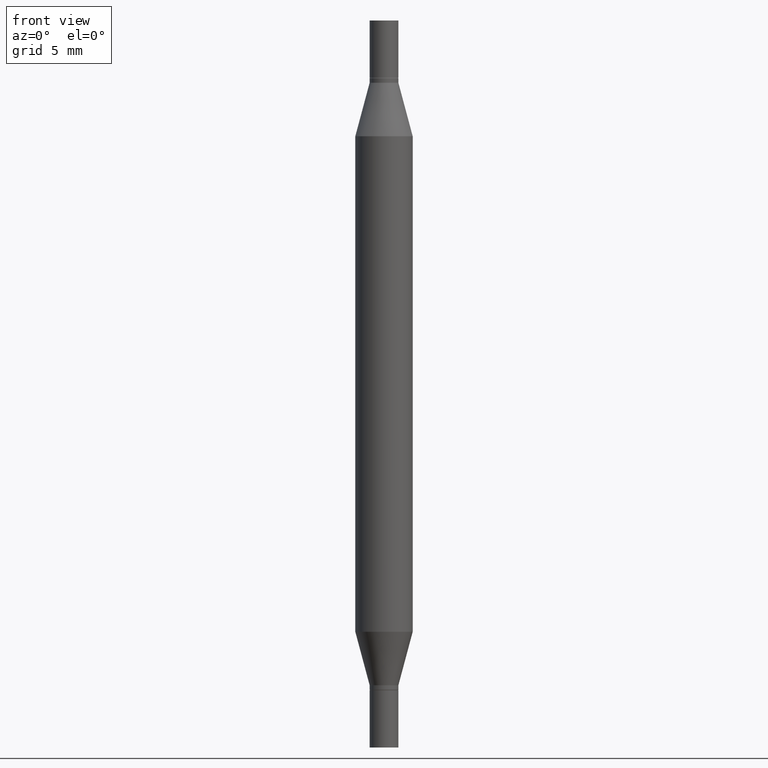
[diagram: clean part render]
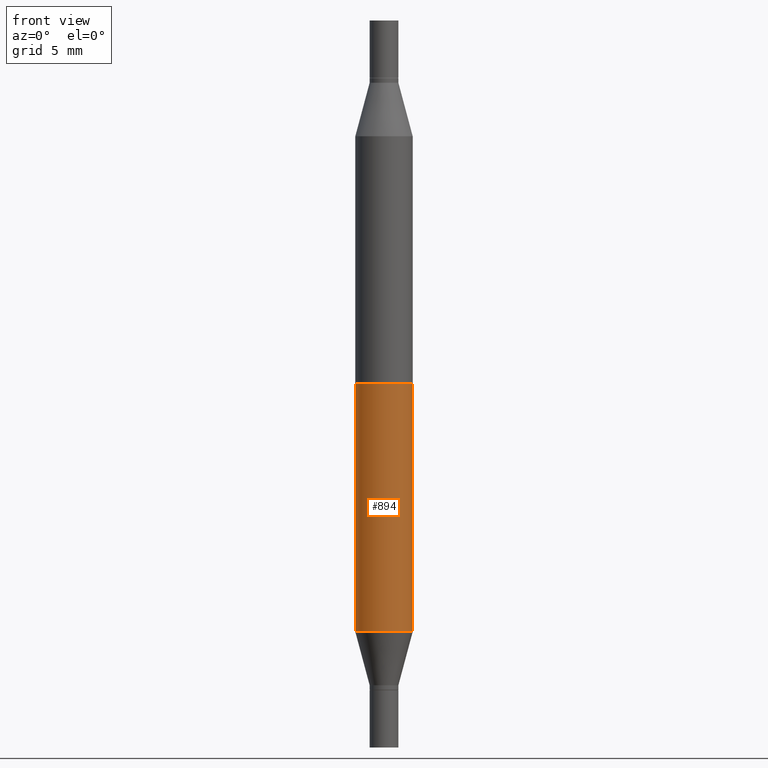
[diagram: same view with one face highlighted and labeled with its STEP entity id]
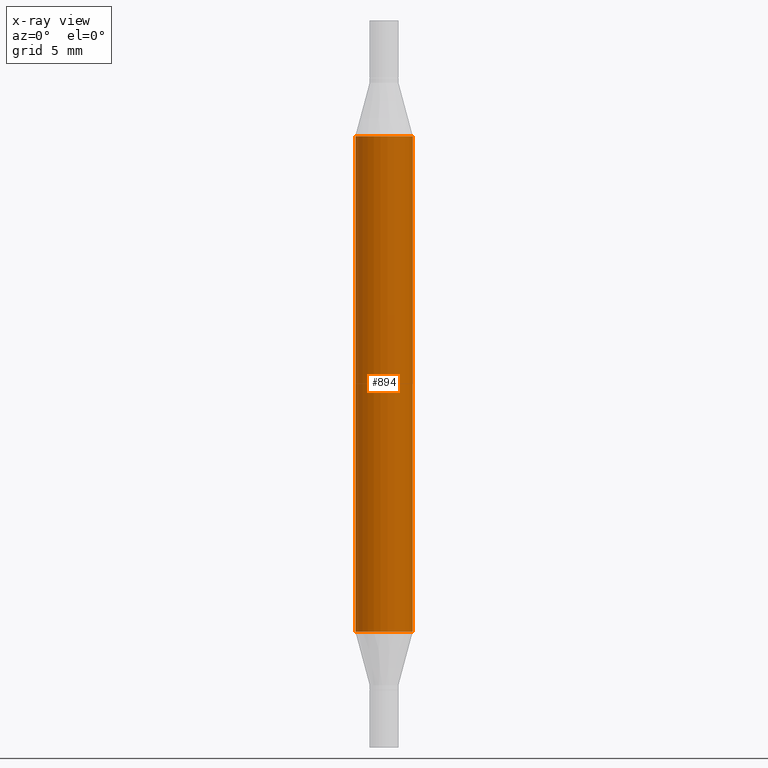
[diagram: x-ray of the same camera — body ghosted, the highlighted face saturated]
A machine part, front view. The second image highlights one B-rep face of the part: STEP entity #894.
The next image is the same camera in x-ray: the body ghosted, the highlighted face saturated — about 0% of this face is hidden behind the body in this view.
In plain terms, the highlighted cylindrical surface (edge-blend (fillet) strip) has radius 1.4999 mm, axis along (-0, -0, -1).
Its self-contained STEP definition (entity closure, byte-faithful):
#23 = LINE ( 'NONE', #841, #127 ) ;
#40 = CARTESIAN_POINT ( 'NONE',  ( 0.000000000000000000, -5.223847416807283040E-15, -1.496099999999999985 ) ) ;
#73 = ORIENTED_EDGE ( 'NONE', *, *, #706, .T. ) ;
#79 = VERTEX_POINT ( 'NONE', #773 ) ;
#81 = DIRECTION ( 'NONE',  ( 1.000000000000000000, -6.982962677686265133E-15, 0.000000000000000000 ) ) ;
#119 = CARTESIAN_POINT ( 'NONE',  ( 0.05904999999999999832, -4.804643186156564878E-15, -1.258004501176717804 ) ) ;
#127 = VECTOR ( 'NONE', #352, 39.37007874015748143 ) ;
#152 = DIRECTION ( 'NONE',  ( -2.445468806185136597E-29, 3.491481338843145583E-15, 1.000000000000000000 ) ) ;
#164 = DIRECTION ( 'NONE',  ( -2.445468806185136877E-29, -3.491805094961123683E-15, -1.000000000000000000 ) ) ;
#191 = AXIS2_PLACEMENT_3D ( 'NONE', #826, #152, #976 ) ;
#240 = CARTESIAN_POINT ( 'NONE',  ( -0.05905000000000000526, -4.818735010038875060E-15, -1.496099999999999985 ) ) ;
#352 = DIRECTION ( 'NONE',  ( -2.445468806185136877E-29, -3.491805094961123683E-15, -1.000000000000000000 ) ) ;
#397 = CIRCLE ( 'NONE', #560, 0.05904999999999999832 ) ;
#408 = CYLINDRICAL_SURFACE ( 'NONE', #825, 0.05905000000000000526 ) ;
#419 = DIRECTION ( 'NONE',  ( -2.445468806185136597E-29, -3.491805094961124077E-15, -1.000000000000000000 ) ) ;
#482 = FACE_OUTER_BOUND ( 'NONE', #693, .T. ) ;
#509 = CARTESIAN_POINT ( 'NONE',  ( -0.05904999999999999832, -2.206690208753205272E-15, -1.258004501176717804 ) ) ;
#520 = ORIENTED_EDGE ( 'NONE', *, *, #774, .F. ) ;
#560 = AXIS2_PLACEMENT_3D ( 'NONE', #619, #751, #81 ) ;
#607 = LINE ( 'NONE', #240, #790 ) ;
#619 = CARTESIAN_POINT ( 'NONE',  ( 3.076410765668156654E-29, -8.311408901143919011E-16, -0.2380954988232820146 ) ) ;
#638 = CIRCLE ( 'NONE', #191, 0.05904999999999999832 ) ;
#655 = VERTEX_POINT ( 'NONE', #509 ) ;
#693 = EDGE_LOOP ( 'NONE', ( #520, #835, #73, #961 ) ) ;
#706 = EDGE_CURVE ( 'NONE', #655, #917, #638, .T. ) ;
#711 = CARTESIAN_POINT ( 'NONE',  ( 0.05904999999999999832, -1.243484836231766624E-15, -0.2380954988232820146 ) ) ;
#751 = DIRECTION ( 'NONE',  ( 2.445468806185136597E-29, 3.491805094961124077E-15, 1.000000000000000000 ) ) ;
#773 = CARTESIAN_POINT ( 'NONE',  ( -0.05904999999999999832, -4.260284833459836245E-16, -0.2380954988232820146 ) ) ;
#774 = EDGE_CURVE ( 'NONE', #79, #882, #397, .T. ) ;
#788 = EDGE_CURVE ( 'NONE', #79, #655, #607, .T. ) ;
#790 = VECTOR ( 'NONE', #164, 39.37007874015748143 ) ;
#825 = AXIS2_PLACEMENT_3D ( 'NONE', #40, #419, #864 ) ;
#826 = CARTESIAN_POINT ( 'NONE',  ( 3.076410765668156654E-29, -4.392299240039190746E-15, -1.258004501176717804 ) ) ;
#835 = ORIENTED_EDGE ( 'NONE', *, *, #788, .T. ) ;
#839 = EDGE_CURVE ( 'NONE', #882, #917, #23, .T. ) ;
#841 = CARTESIAN_POINT ( 'NONE',  ( 0.05905000000000000526, -5.636191362924657961E-15, -1.496099999999999985 ) ) ;
#864 = DIRECTION ( 'NONE',  ( 1.000000000000000000, -6.982962677686272233E-15, 0.000000000000000000 ) ) ;
#882 = VERTEX_POINT ( 'NONE', #711 ) ;
#894 = ADVANCED_FACE ( 'NONE', ( #482 ), #408, .T. ) ;
#917 = VERTEX_POINT ( 'NONE', #119 ) ;
#961 = ORIENTED_EDGE ( 'NONE', *, *, #839, .F. ) ;
#976 = DIRECTION ( 'NONE',  ( 1.000000000000000000, -6.982962677686273021E-15, 0.000000000000000000 ) ) ;